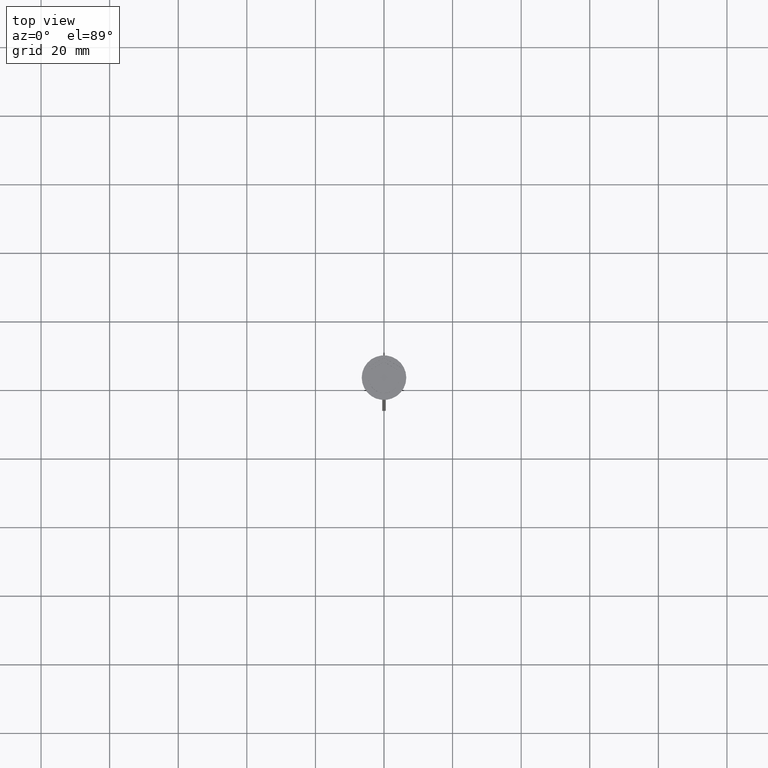
[diagram: clean part render]
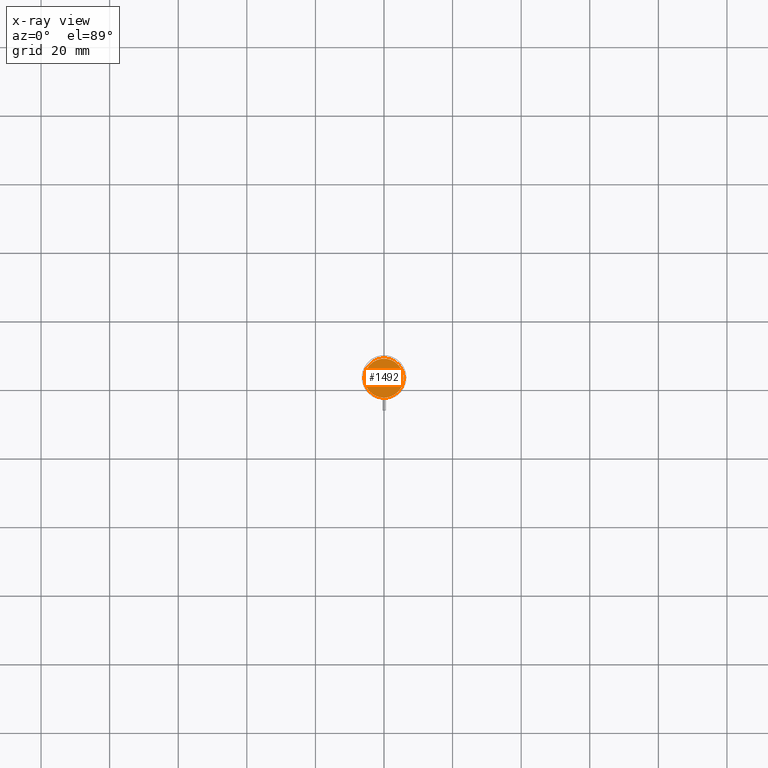
[diagram: x-ray — body ghosted, one internal face saturated and labeled with its STEP entity id]
A machine part, top view, then the same camera in x-ray: the body is ghosted and one INTERNAL B-rep face — a face not visible from any outside direction — is saturated and labeled: STEP entity #1492.
In plain terms, the highlighted planar face has unit normal (0, 0, -1).
Its self-contained STEP definition (entity closure, byte-faithful):
#136 = CIRCLE ( 'NONE', #1823, 5.700000000000002842 ) ;
#238 = CIRCLE ( 'NONE', #802, 5.700000000000002842 ) ;
#319 = DIRECTION ( 'NONE',  ( -1.000000000000000000, 0.000000000000000000, 0.000000000000000000 ) ) ;
#578 = DIRECTION ( 'NONE',  ( -1.000000000000000000, 0.000000000000000000, 0.000000000000000000 ) ) ;
#662 = DIRECTION ( 'NONE',  ( 0.000000000000000000, 0.000000000000000000, -1.000000000000000000 ) ) ;
#667 = DIRECTION ( 'NONE',  ( -0.000000000000000000, -0.000000000000000000, 1.000000000000000000 ) ) ;
#702 = ORIENTED_EDGE ( 'NONE', *, *, #2260, .T. ) ;
#802 = AXIS2_PLACEMENT_3D ( 'NONE', #2411, #667, #319 ) ;
#902 = CARTESIAN_POINT ( 'NONE',  ( -5.700000000000002842, 0.000000000000000000, -10.50000000000000178 ) ) ;
#943 = DIRECTION ( 'NONE',  ( -0.000000000000000000, -0.000000000000000000, 1.000000000000000000 ) ) ;
#980 = ORIENTED_EDGE ( 'NONE', *, *, #2351, .T. ) ;
#1239 = AXIS2_PLACEMENT_3D ( 'NONE', #2393, #662, #1429 ) ;
#1429 = DIRECTION ( 'NONE',  ( -1.000000000000000000, 0.000000000000000000, -0.000000000000000000 ) ) ;
#1492 = ADVANCED_FACE ( 'NONE', ( #2418 ), #2378, .F. ) ;
#1709 = CARTESIAN_POINT ( 'NONE',  ( 0.000000000000000000, 0.000000000000000000, -10.50000000000000178 ) ) ;
#1823 = AXIS2_PLACEMENT_3D ( 'NONE', #1709, #943, #578 ) ;
#1986 = VERTEX_POINT ( 'NONE', #902 ) ;
#2135 = VERTEX_POINT ( 'NONE', #2382 ) ;
#2184 = EDGE_LOOP ( 'NONE', ( #702, #980 ) ) ;
#2260 = EDGE_CURVE ( 'NONE', #1986, #2135, #238, .T. ) ;
#2351 = EDGE_CURVE ( 'NONE', #2135, #1986, #136, .T. ) ;
#2378 = PLANE ( 'NONE',  #1239 ) ;
#2382 = CARTESIAN_POINT ( 'NONE',  ( 5.700000000000002842, 7.164183775012019380E-16, -10.50000000000000178 ) ) ;
#2393 = CARTESIAN_POINT ( 'NONE',  ( 0.000000000000000000, 0.000000000000000000, -10.50000000000000178 ) ) ;
#2411 = CARTESIAN_POINT ( 'NONE',  ( 0.000000000000000000, 0.000000000000000000, -10.50000000000000178 ) ) ;
#2418 = FACE_OUTER_BOUND ( 'NONE', #2184, .T. ) ;